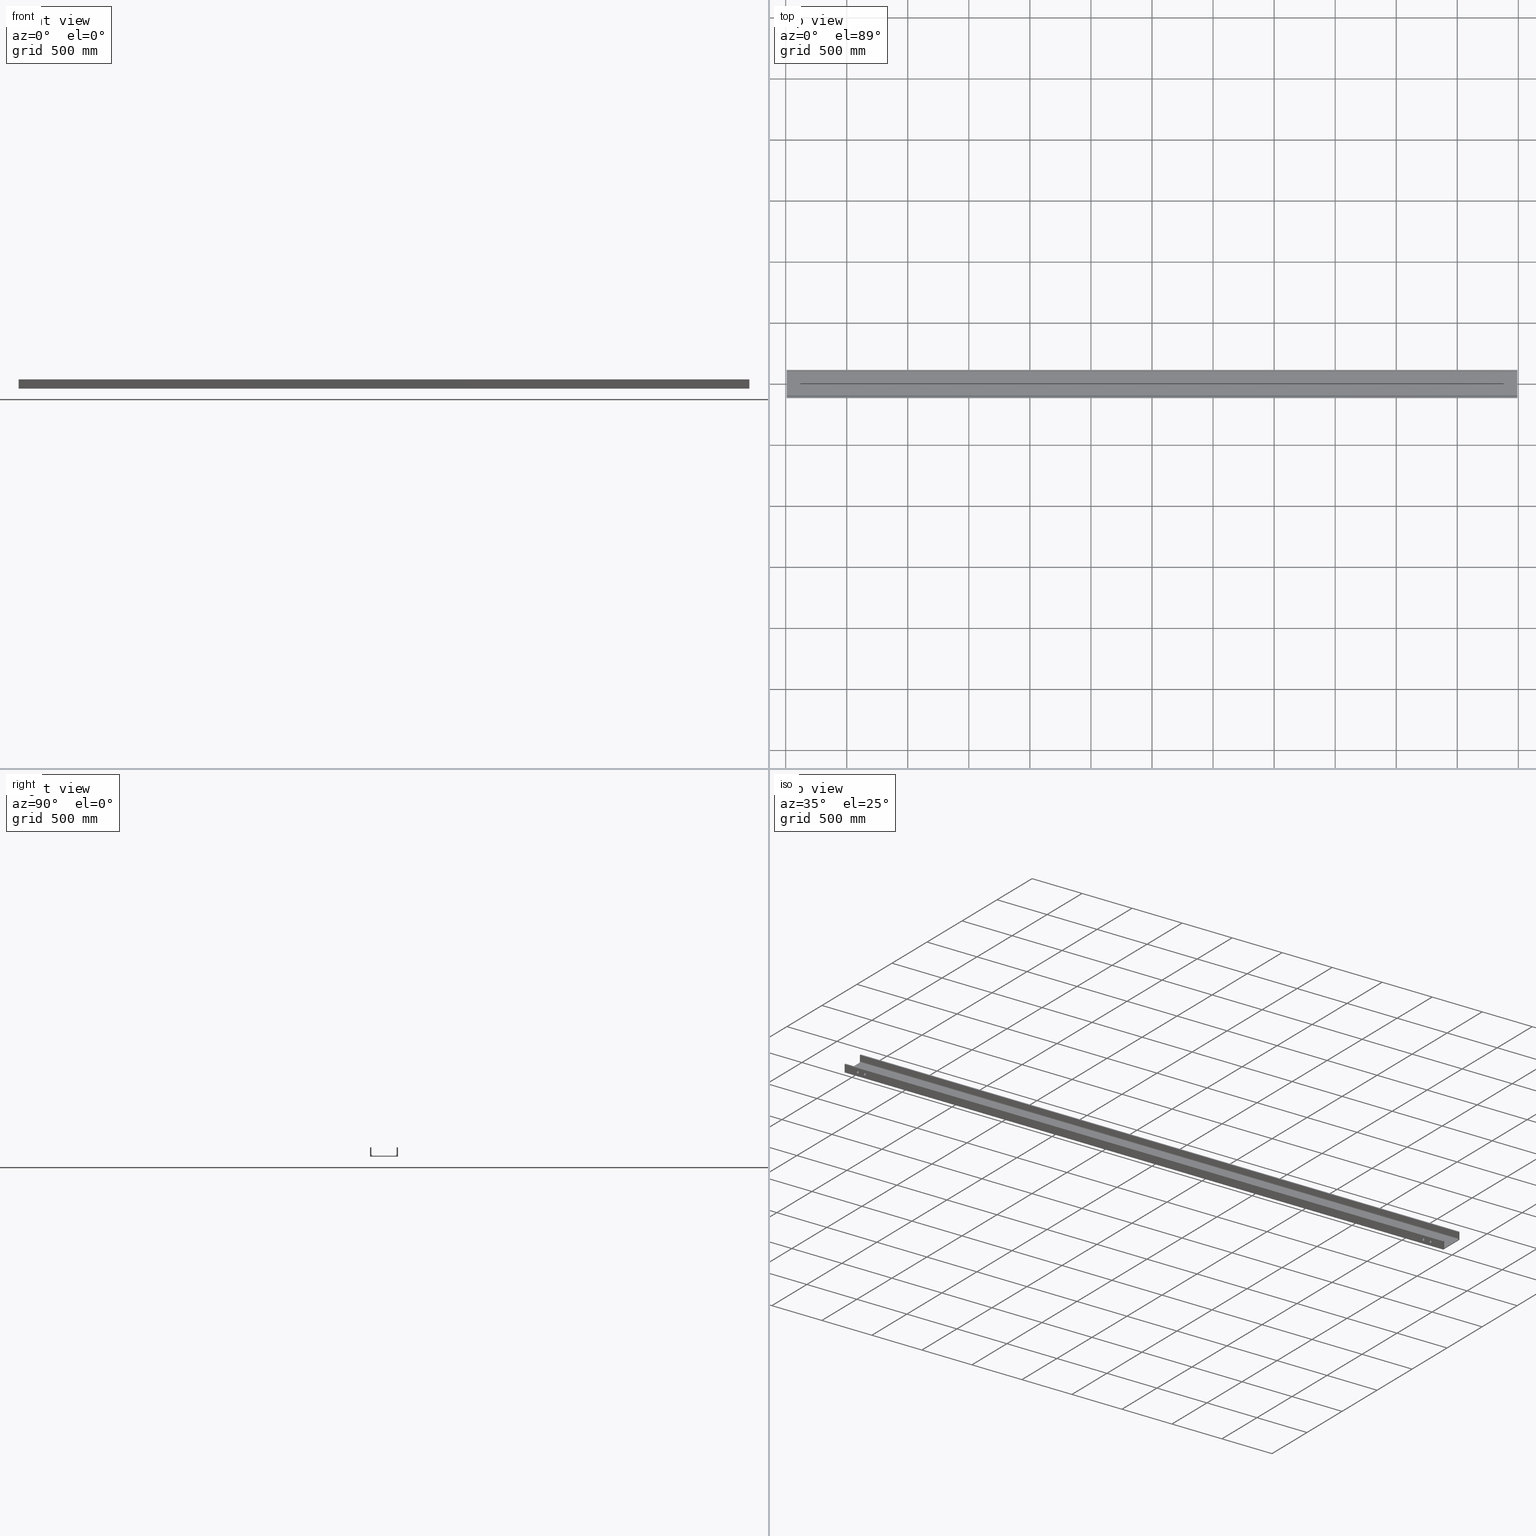
[diagram: canonical four-view strip — front | top / right | iso, engineering-drawing reading convention]
A machine part, canonical four-view strip (front | top / right | iso — engineering-drawing reading convention). The complete STEP part file that produces these views, byte-faithful:
ISO-10303-21;
HEADER;
FILE_DESCRIPTION (( 'STEP AP203' ),
    '1' );
FILE_NAME ('3982-43-10_REV_.step',
    '2026-01-19T05:54:27',
    ( '' ),
    ( '' ),
    'SwSTEP 2.0',
    'SolidWorks 2025',
    '' );
FILE_SCHEMA (( 'CONFIG_CONTROL_DESIGN' ));
ENDSEC;

DATA;
#1 = ORIENTED_EDGE ( 'NONE', *, *, #409, .T. ) ;
#2 = LINE ( 'NONE', #35, #212 ) ;
#3 = PERSON ( 'UNSPECIFIED', 'UNSPECIFIED', 'UNSPECIFIED', ('UNSPECIFIED'), ('UNSPECIFIED'), ('UNSPECIFIED') ) ;
#4 = EDGE_CURVE ( 'NONE', #157, #161, #98, .T. ) ;
#5 = CIRCLE ( 'NONE', #424, 12.00000000000001066 ) ;
#6 = APPROVAL_PERSON_ORGANIZATION ( #332, #75, #290 ) ;
#7 = PERSON_AND_ORGANIZATION ( #3, #639 ) ;
#8 = DIRECTION ( 'NONE',  ( 0.000000000000000000, -3.469446951953611033E-15, -1.000000000000000000 ) ) ;
#9 = CYLINDRICAL_SURFACE ( 'NONE', #188, 12.00000000000001066 ) ;
#10 = DIRECTION ( 'NONE',  ( -0.000000000000000000, -1.000000000000000000, -0.000000000000000000 ) ) ;
#11 = CARTESIAN_POINT ( 'NONE',  ( -2992.500000000000000, 90.99999999999927525, -7.200000000000271960 ) ) ;
#12 = EDGE_CURVE ( 'NONE', #429, #385, #595, .T. ) ;
#13 = CARTESIAN_POINT ( 'NONE',  ( 0.000000000000000000, 0.000000000000000000, 0.000000000000000000 ) ) ;
#14 = ORIENTED_EDGE ( 'NONE', *, *, #46, .F. ) ;
#15 = CARTESIAN_POINT ( 'NONE',  ( 2992.500000000000000, 91.00000000000110845, -7.200000000000271960 ) ) ;
#16 = ADVANCED_FACE ( 'NONE', ( #36 ), #727, .T. ) ;
#17 = PERSON_AND_ORGANIZATION ( #3, #639 ) ;
#18 = ORIENTED_EDGE ( 'NONE', *, *, #310, .T. ) ;
#19 = AXIS2_PLACEMENT_3D ( 'NONE', #498, #265, #510 ) ;
#20 = VECTOR ( 'NONE', #276, 1000.000000000000000 ) ;
#21 = PERSON_AND_ORGANIZATION ( #3, #639 ) ;
#22 = ORIENTED_EDGE ( 'NONE', *, *, #506, .T. ) ;
#23 = FACE_OUTER_BOUND ( 'NONE', #632, .T. ) ;
#24 = ORIENTED_EDGE ( 'NONE', *, *, #149, .F. ) ;
#25 = DIRECTION ( 'NONE',  ( 0.000000000000000000, -1.000000000000000000, 3.550464257150331619E-15 ) ) ;
#26 = ADVANCED_FACE ( 'NONE', ( #721 ), #503, .F. ) ;
#27 = ORIENTED_EDGE ( 'NONE', *, *, #154, .T. ) ;
#28 = LINE ( 'NONE', #731, #513 ) ;
#29 = AXIS2_PLACEMENT_3D ( 'NONE', #208, #664, #607 ) ;
#30 = EDGE_LOOP ( 'NONE', ( #261, #174, #308, #574 ) ) ;
#31 = CARTESIAN_POINT ( 'NONE',  ( 2862.500000000000455, -114.9999999999997300, 35.80000000000040217 ) ) ;
#32 = DIRECTION ( 'NONE',  ( 0.000000000000000000, -1.000000000000000000, 5.204170427930446527E-15 ) ) ;
#33 = DIRECTION ( 'NONE',  ( 1.000000000000000000, 3.061616997868382648E-16, -0.000000000000000000 ) ) ;
#34 = EDGE_LOOP ( 'NONE', ( #132, #27 ) ) ;
#35 = CARTESIAN_POINT ( 'NONE',  ( -2992.500000000000000, 90.99999999999927525, -7.200000000000271960 ) ) ;
#36 = FACE_OUTER_BOUND ( 'NONE', #647, .T. ) ;
#37 = FACE_OUTER_BOUND ( 'NONE', #280, .T. ) ;
#38 = ORIENTED_EDGE ( 'NONE', *, *, #465, .F. ) ;
#39 = CARTESIAN_POINT ( 'NONE',  ( -2992.500000000000000, -103.0000000000005826, 61.30000000000038085 ) ) ;
#40 = LINE ( 'NONE', #613, #555 ) ;
#41 = AXIS2_PLACEMENT_3D ( 'NONE', #597, #733, #494 ) ;
#42 = ORIENTED_EDGE ( 'NONE', *, *, #472, .T. ) ;
#43 = CIRCLE ( 'NONE', #387, 11.99999999999995559 ) ;
#44 = DIRECTION ( 'NONE',  ( 0.000000000000000000, -3.469446951953611033E-15, -1.000000000000000000 ) ) ;
#45 = LINE ( 'NONE', #368, #20 ) ;
#46 = EDGE_CURVE ( 'NONE', #404, #668, #710, .T. ) ;
#47 = CARTESIAN_POINT ( 'NONE',  ( -2862.500000000000455, -103.0000000000006253, 35.80000000000040217 ) ) ;
#48 = LINE ( 'NONE', #314, #178 ) ;
#49 = ADVANCED_FACE ( 'NONE', ( #443 ), #338, .T. ) ;
#50 = CARTESIAN_POINT ( 'NONE',  ( -2862.500000000000455, -114.9999999999997300, 23.80000000000038796 ) ) ;
#51 = EDGE_LOOP ( 'NONE', ( #137, #398, #539, #546 ) ) ;
#52 = AXIS2_PLACEMENT_3D ( 'NONE', #450, #282, #176 ) ;
#53 = DIRECTION ( 'NONE',  ( -0.000000000000000000, -1.000000000000000000, -0.000000000000000000 ) ) ;
#54 = CARTESIAN_POINT ( 'NONE',  ( -2992.500000000000000, 102.9999999999995168, 61.29999999999964899 ) ) ;
#55 = ORIENTED_EDGE ( 'NONE', *, *, #650, .T. ) ;
#56 = VECTOR ( 'NONE', #636, 1000.000000000000000 ) ;
#57 = LOCAL_TIME ( 16, 54, 27.00000000000000000, #249 ) ;
#58 = DIRECTION ( 'NONE',  ( 0.000000000000000000, 2.960594732333750906E-15, 1.000000000000000000 ) ) ;
#59 = APPROVAL_DATE_TIME ( #111, #75 ) ;
#60 = CARTESIAN_POINT ( 'NONE',  ( -2862.500000000000455, -114.9999999999997300, 35.80000000000040217 ) ) ;
#61 = ORIENTED_EDGE ( 'NONE', *, *, #693, .T. ) ;
#62 = DIRECTION ( 'NONE',  ( 0.000000000000000000, -1.000000000000000000, 3.550464257150332014E-15 ) ) ;
#63 = EDGE_CURVE ( 'NONE', #683, #297, #159, .T. ) ;
#64 = VERTEX_POINT ( 'NONE', #289 ) ;
#65 = CARTESIAN_POINT ( 'NONE',  ( 2862.500000000000455, -114.9999999999997300, 23.80000000000038796 ) ) ;
#66 = CYLINDRICAL_SURFACE ( 'NONE', #566, 12.00000000000001066 ) ;
#67 = CC_DESIGN_PERSON_AND_ORGANIZATION_ASSIGNMENT ( #17, #646, ( #605 ) ) ;
#68 = ORIENTED_EDGE ( 'NONE', *, *, #526, .F. ) ;
#69 = DIRECTION ( 'NONE',  ( -0.000000000000000000, -1.000000000000000000, -0.000000000000000000 ) ) ;
#70 = CARTESIAN_POINT ( 'NONE',  ( 2862.500000000000455, -114.9999999999997300, 11.80000000000037552 ) ) ;
#71 = COORDINATED_UNIVERSAL_TIME_OFFSET ( 10, 0, .AHEAD. ) ;
#72 = EDGE_CURVE ( 'NONE', #446, #323, #224, .T. ) ;
#73 = VECTOR ( 'NONE', #345, 1000.000000000000000 ) ;
#74 = ORIENTED_EDGE ( 'NONE', *, *, #629, .F. ) ;
#75 = APPROVAL ( #107, 'UNSPECIFIED' ) ;
#76 = ORIENTED_EDGE ( 'NONE', *, *, #358, .F. ) ;
#77 = ORIENTED_EDGE ( 'NONE', *, *, #476, .T. ) ;
#78 = DIRECTION ( 'NONE',  ( 0.000000000000000000, -3.469446951953611033E-15, -1.000000000000000000 ) ) ;
#79 = ORIENTED_EDGE ( 'NONE', *, *, #606, .T. ) ;
#80 = CARTESIAN_POINT ( 'NONE',  ( -2992.500000000000000, 90.99999999999927525, -7.200000000000271960 ) ) ;
#81 = PRODUCT ( '3982-43-10_REV_', '3982-43-10_REV_', '', ( #406 ) ) ;
#82 = ORIENTED_EDGE ( 'NONE', *, *, #705, .F. ) ;
#83 = CARTESIAN_POINT ( 'NONE',  ( -2992.500000000000000, -91.00000000000076739, 4.800000000000296474 ) ) ;
#84 = DIRECTION ( 'NONE',  ( 1.000000000000000000, 3.061616997868382648E-16, -0.000000000000000000 ) ) ;
#85 = ADVANCED_FACE ( 'NONE', ( #228 ), #571, .F. ) ;
#86 = ORIENTED_EDGE ( 'NONE', *, *, #409, .F. ) ;
#87 = DIRECTION ( 'NONE',  ( 1.000000000000000000, 3.061616997868382648E-16, -0.000000000000000000 ) ) ;
#88 = ORIENTED_EDGE ( 'NONE', *, *, #573, .T. ) ;
#89 = DIRECTION ( 'NONE',  ( 0.000000000000000000, 1.000000000000000000, -1.734723475976815575E-15 ) ) ;
#90 = APPROVAL ( #532, 'UNSPECIFIED' ) ;
#91 = EDGE_LOOP ( 'NONE', ( #637, #719, #583, #82, #674, #256, #155, #371, #18, #670 ) ) ;
#92 = CARTESIAN_POINT ( 'NONE',  ( 2992.500000000000000, 115.0000000000012932, 61.29999999999958504 ) ) ;
#93 = DIRECTION ( 'NONE',  ( -1.000000000000000000, -3.061616997868382648E-16, 0.000000000000000000 ) ) ;
#94 = DIRECTION ( 'NONE',  ( 0.000000000000000000, -3.469446951953611033E-15, -1.000000000000000000 ) ) ;
#95 = EDGE_CURVE ( 'NONE', #695, #318, #495, .T. ) ;
#96 = CARTESIAN_POINT ( 'NONE',  ( -2862.500000000000455, -103.0000000000006537, 23.80000000000038796 ) ) ;
#97 = DIRECTION ( 'NONE',  ( 3.061616997868382648E-16, -1.000000000000000000, 0.000000000000000000 ) ) ;
#98 = CIRCLE ( 'NONE', #662, 12.00000000000001066 ) ;
#99 = CARTESIAN_POINT ( 'NONE',  ( 2862.500000000000455, -102.9999999999988916, 23.80000000000038796 ) ) ;
#100 = AXIS2_PLACEMENT_3D ( 'NONE', #65, #69, #198 ) ;
#101 = CARTESIAN_POINT ( 'NONE',  ( -2992.500000000000000, -103.0000000000007532, 4.800000000000337330 ) ) ;
#102 = EDGE_CURVE ( 'NONE', #157, #104, #672, .T. ) ;
#103 = VECTOR ( 'NONE', #561, 1000.000000000000000 ) ;
#104 = VERTEX_POINT ( 'NONE', #60 ) ;
#105 = CARTESIAN_POINT ( 'NONE',  ( -2792.500000000000455, -103.0000000000006395, 23.80000000000037730 ) ) ;
#106 = DIRECTION ( 'NONE',  ( 3.061616997868382648E-16, -1.000000000000000000, 3.193119318612173803E-15 ) ) ;
#107 = APPROVAL_STATUS ( 'not_yet_approved' ) ;
#108 = ORIENTED_EDGE ( 'NONE', *, *, #253, .T. ) ;
#109 = DIRECTION ( 'NONE',  ( 0.000000000000000000, 1.000000000000000000, -1.734723475976815772E-15 ) ) ;
#110 = ADVANCED_BREP_SHAPE_REPRESENTATION ( '3982-43-10_REV_', ( #548, #568 ), #374 ) ;
#111 = DATE_AND_TIME ( #620, #415 ) ;
#112 = ORIENTED_EDGE ( 'NONE', *, *, #383, .T. ) ;
#113 = DIRECTION ( 'NONE',  ( -1.087016172001559413E-30, 3.550464257150332014E-15, 1.000000000000000000 ) ) ;
#114 = ORIENTED_EDGE ( 'NONE', *, *, #185, .T. ) ;
#115 = LINE ( 'NONE', #180, #150 ) ;
#116 = VECTOR ( 'NONE', #563, 1000.000000000000000 ) ;
#117 = CC_DESIGN_APPROVAL ( #204, ( #667 ) ) ;
#118 = DIRECTION ( 'NONE',  ( 0.000000000000000000, -3.469446951953611033E-15, -1.000000000000000000 ) ) ;
#119 = PERSON_AND_ORGANIZATION ( #3, #639 ) ;
#120 = DIRECTION ( 'NONE',  ( -0.000000000000000000, -1.000000000000000000, -0.000000000000000000 ) ) ;
#121 = CALENDAR_DATE ( 2026, 19, 1 ) ;
#122 = ORIENTED_EDGE ( 'NONE', *, *, #136, .T. ) ;
#123 = DIRECTION ( 'NONE',  ( -1.085303336481044130E-30, 3.544869711778692810E-15, 1.000000000000000000 ) ) ;
#124 = AXIS2_PLACEMENT_3D ( 'NONE', #341, #730, #58 ) ;
#125 = APPLICATION_CONTEXT ( 'configuration controlled 3d designs of mechanical parts and assemblies' ) ;
#126 = AXIS2_PLACEMENT_3D ( 'NONE', #582, #708, #641 ) ;
#127 = EDGE_LOOP ( 'NONE', ( #709, #264, #227, #250 ) ) ;
#128 = FACE_OUTER_BOUND ( 'NONE', #127, .T. ) ;
#129 = EDGE_CURVE ( 'NONE', #161, #562, #217, .T. ) ;
#130 = VECTOR ( 'NONE', #247, 1000.000000000000000 ) ;
#131 = CIRCLE ( 'NONE', #436, 12.00000000000001066 ) ;
#132 = ORIENTED_EDGE ( 'NONE', *, *, #95, .T. ) ;
#133 = ADVANCED_FACE ( 'NONE', ( #517 ), #9, .F. ) ;
#134 = ORIENTED_EDGE ( 'NONE', *, *, #463, .F. ) ;
#135 = LINE ( 'NONE', #15, #663 ) ;
#136 = EDGE_CURVE ( 'NONE', #297, #327, #480, .T. ) ;
#137 = ORIENTED_EDGE ( 'NONE', *, *, #182, .F. ) ;
#138 = FACE_BOUND ( 'NONE', #284, .T. ) ;
#139 = DIRECTION ( 'NONE',  ( 3.061616997868382648E-16, -1.000000000000000000, 3.193119318612173803E-15 ) ) ;
#140 = PLANE ( 'NONE',  #676 ) ;
#141 = ORIENTED_EDGE ( 'NONE', *, *, #389, .F. ) ;
#142 = CARTESIAN_POINT ( 'NONE',  ( -2792.500000000000455, -114.9999999999997300, 35.80000000000038796 ) ) ;
#143 = PLANE ( 'NONE',  #501 ) ;
#144 = ORIENTED_EDGE ( 'NONE', *, *, #334, .T. ) ;
#145 = CARTESIAN_POINT ( 'NONE',  ( -2862.500000000000455, -114.9999999999997300, 11.80000000000037552 ) ) ;
#146 = VECTOR ( 'NONE', #440, 1000.000000000000000 ) ;
#147 = EDGE_LOOP ( 'NONE', ( #414, #151, #419, #77 ) ) ;
#148 = CARTESIAN_POINT ( 'NONE',  ( -2992.500000000000000, -91.00000000000076739, 4.800000000000296474 ) ) ;
#149 = EDGE_CURVE ( 'NONE', #668, #404, #468, .T. ) ;
#150 = VECTOR ( 'NONE', #223, 1000.000000000000000 ) ;
#151 = ORIENTED_EDGE ( 'NONE', *, *, #288, .F. ) ;
#152 = CARTESIAN_POINT ( 'NONE',  ( -2992.500000000000000, 102.9999999999995168, 61.29999999999964899 ) ) ;
#153 = DIRECTION ( 'NONE',  ( 1.000000000000000000, 3.061616997868382648E-16, -0.000000000000000000 ) ) ;
#154 = EDGE_CURVE ( 'NONE', #318, #695, #577, .T. ) ;
#155 = ORIENTED_EDGE ( 'NONE', *, *, #445, .T. ) ;
#156 = DIRECTION ( 'NONE',  ( 0.000000000000000000, 0.000000000000000000, -1.000000000000000000 ) ) ;
#157 = VERTEX_POINT ( 'NONE', #47 ) ;
#158 = CARTESIAN_POINT ( 'NONE',  ( 2992.500000000000000, -114.9999999999986926, 61.30000000000040217 ) ) ;
#159 = LINE ( 'NONE', #286, #73 ) ;
#160 = DIRECTION ( 'NONE',  ( 1.000000000000000000, 3.061616997868382648E-16, -0.000000000000000000 ) ) ;
#161 = VERTEX_POINT ( 'NONE', #277 ) ;
#162 = DIRECTION ( 'NONE',  ( 0.000000000000000000, -3.469446951953611033E-15, -1.000000000000000000 ) ) ;
#163 = AXIS2_PLACEMENT_3D ( 'NONE', #623, #688, #614 ) ;
#164 = AXIS2_PLACEMENT_3D ( 'NONE', #384, #493, #540 ) ;
#165 = PERSON_AND_ORGANIZATION_ROLE ( 'creator' ) ;
#166 = EDGE_LOOP ( 'NONE', ( #369, #108 ) ) ;
#167 = LINE ( 'NONE', #391, #692 ) ;
#168 = DIRECTION ( 'NONE',  ( 0.000000000000000000, 0.000000000000000000, -1.000000000000000000 ) ) ;
#169 = CALENDAR_DATE ( 2026, 19, 1 ) ;
#170 = LINE ( 'NONE', #348, #116 ) ;
#171 = EDGE_CURVE ( 'NONE', #695, #244, #507, .T. ) ;
#172 = DIRECTION ( 'NONE',  ( 0.000000000000000000, 0.000000000000000000, -1.000000000000000000 ) ) ;
#173 = DATE_AND_TIME ( #634, #403 ) ;
#174 = ORIENTED_EDGE ( 'NONE', *, *, #463, .T. ) ;
#175 = AXIS2_PLACEMENT_3D ( 'NONE', #99, #106, #118 ) ;
#176 = DIRECTION ( 'NONE',  ( 0.000000000000000000, 1.000000000000000000, 0.000000000000000000 ) ) ;
#177 = PERSON_AND_ORGANIZATION ( #3, #639 ) ;
#178 = VECTOR ( 'NONE', #720, 1000.000000000000000 ) ;
#179 = ORIENTED_EDGE ( 'NONE', *, *, #310, .F. ) ;
#180 = CARTESIAN_POINT ( 'NONE',  ( 2992.500000000000000, 115.0000000000010800, -13.70000000000041318 ) ) ;
#181 = CIRCLE ( 'NONE', #460, 11.99999999999995559 ) ;
#182 = EDGE_CURVE ( 'NONE', #335, #668, #421, .T. ) ;
#183 = DIRECTION ( 'NONE',  ( 0.000000000000000000, 0.000000000000000000, -1.000000000000000000 ) ) ;
#184 = ADVANCED_FACE ( 'NONE', ( #654, #138, #196, #473, #535 ), #140, .F. ) ;
#185 = EDGE_CURVE ( 'NONE', #240, #609, #135, .T. ) ;
#186 = EDGE_LOOP ( 'NONE', ( #22, #635 ) ) ;
#187 = DIRECTION ( 'NONE',  ( -0.000000000000000000, -1.000000000000000000, -0.000000000000000000 ) ) ;
#188 = AXIS2_PLACEMENT_3D ( 'NONE', #382, #230, #560 ) ;
#189 = ORIENTED_EDGE ( 'NONE', *, *, #573, .F. ) ;
#190 = CIRCLE ( 'NONE', #602, 12.00000000000001066 ) ;
#191 = CC_DESIGN_APPROVAL ( #75, ( #471 ) ) ;
#192 = EDGE_LOOP ( 'NONE', ( #481, #564, #534, #581 ) ) ;
#193 = DIRECTION ( 'NONE',  ( 3.061616997868382648E-16, -1.000000000000000000, 3.193119318612173803E-15 ) ) ;
#194 = CARTESIAN_POINT ( 'NONE',  ( -2992.500000000000000, 114.9999999999992468, -13.70000000000041318 ) ) ;
#195 = ORIENTED_EDGE ( 'NONE', *, *, #586, .F. ) ;
#196 = FACE_BOUND ( 'NONE', #464, .T. ) ;
#197 = CARTESIAN_POINT ( 'NONE',  ( -2992.500000000000000, 114.9999999999992468, -13.70000000000041318 ) ) ;
#198 = DIRECTION ( 'NONE',  ( 0.000000000000000000, 0.000000000000000000, -1.000000000000000000 ) ) ;
#199 = CIRCLE ( 'NONE', #373, 12.00000000000001066 ) ;
#200 = EDGE_CURVE ( 'NONE', #429, #603, #649, .T. ) ;
#201 = CARTESIAN_POINT ( 'NONE',  ( -2862.500000000000455, -103.0000000000006537, 23.80000000000038796 ) ) ;
#202 = CYLINDRICAL_SURFACE ( 'NONE', #485, 11.99999999999995559 ) ;
#203 = EDGE_LOOP ( 'NONE', ( #390, #690, #321, #543 ) ) ;
#204 = APPROVAL ( #508, 'UNSPECIFIED' ) ;
#205 = ORIENTED_EDGE ( 'NONE', *, *, #346, .F. ) ;
#206 = DIRECTION ( 'NONE',  ( 1.000000000000000000, 3.061616997868382648E-16, -0.000000000000000000 ) ) ;
#207 = LINE ( 'NONE', #431, #56 ) ;
#208 = CARTESIAN_POINT ( 'NONE',  ( 2792.500000000000455, -114.9999999999997300, 23.80000000000037730 ) ) ;
#209 = CARTESIAN_POINT ( 'NONE',  ( 2862.500000000000455, -114.9999999999997300, 23.80000000000038796 ) ) ;
#210 = DIRECTION ( 'NONE',  ( 3.061616997868382648E-16, -1.000000000000000000, 0.000000000000000000 ) ) ;
#211 = ADVANCED_FACE ( 'NONE', ( #23 ), #361, .T. ) ;
#212 = VECTOR ( 'NONE', #153, 1000.000000000000000 ) ;
#213 = EDGE_LOOP ( 'NONE', ( #299, #640, #484, #407 ) ) ;
#214 = LINE ( 'NONE', #438, #638 ) ;
#215 = PLANE ( 'NONE',  #234 ) ;
#216 = EDGE_CURVE ( 'NONE', #446, #426, #594, .T. ) ;
#217 = LINE ( 'NONE', #396, #146 ) ;
#218 = CARTESIAN_POINT ( 'NONE',  ( 2792.500000000000455, -102.9999999999989626, 11.80000000000036664 ) ) ;
#219 = ORIENTED_EDGE ( 'NONE', *, *, #288, .T. ) ;
#220 = DIRECTION ( 'NONE',  ( 0.000000000000000000, -1.000000000000000000, 0.000000000000000000 ) ) ;
#221 = CARTESIAN_POINT ( 'NONE',  ( 2862.500000000000455, -114.9999999999997300, 11.80000000000037552 ) ) ;
#222 = ORIENTED_EDGE ( 'NONE', *, *, #129, .F. ) ;
#223 = DIRECTION ( 'NONE',  ( 0.000000000000000000, -1.000000000000000000, 3.544869711778692810E-15 ) ) ;
#224 = CIRCLE ( 'NONE', #52, 11.99999999999995559 ) ;
#225 = CARTESIAN_POINT ( 'NONE',  ( -2862.500000000000455, -114.9999999999997300, 35.80000000000040217 ) ) ;
#226 = CARTESIAN_POINT ( 'NONE',  ( -2992.500000000000000, 114.9999999999994600, 61.29999999999958504 ) ) ;
#227 = ORIENTED_EDGE ( 'NONE', *, *, #622, .T. ) ;
#228 = FACE_OUTER_BOUND ( 'NONE', #717, .T. ) ;
#229 = CARTESIAN_POINT ( 'NONE',  ( 2792.500000000000455, -102.9999999999989200, 23.80000000000037730 ) ) ;
#230 = DIRECTION ( 'NONE',  ( -0.000000000000000000, -1.000000000000000000, -0.000000000000000000 ) ) ;
#231 = VERTEX_POINT ( 'NONE', #417 ) ;
#232 = CARTESIAN_POINT ( 'NONE',  ( -2992.500000000000000, -115.0000000000005116, 61.30000000000040217 ) ) ;
#233 = ADVANCED_FACE ( 'NONE', ( #309 ), #66, .F. ) ;
#234 = AXIS2_PLACEMENT_3D ( 'NONE', #333, #386, #428 ) ;
#235 = AXIS2_PLACEMENT_3D ( 'NONE', #229, #458, #8 ) ;
#236 = DIRECTION ( 'NONE',  ( 1.000000000000000000, 3.061616997868382648E-16, 0.000000000000000000 ) ) ;
#237 = EDGE_CURVE ( 'NONE', #318, #238, #252, .T. ) ;
#238 = VERTEX_POINT ( 'NONE', #528 ) ;
#239 = CARTESIAN_POINT ( 'NONE',  ( -2862.500000000000455, -114.9999999999997300, 23.80000000000038796 ) ) ;
#240 = VERTEX_POINT ( 'NONE', #355 ) ;
#241 = VECTOR ( 'NONE', #711, 1000.000000000000000 ) ;
#242 = DATE_AND_TIME ( #527, #272 ) ;
#243 = CC_DESIGN_PERSON_AND_ORGANIZATION_ASSIGNMENT ( #119, #572, ( #471 ) ) ;
#244 = VERTEX_POINT ( 'NONE', #70 ) ;
#245 = FACE_OUTER_BOUND ( 'NONE', #192, .T. ) ;
#246 = CIRCLE ( 'NONE', #19, 12.00000000000001066 ) ;
#247 = DIRECTION ( 'NONE',  ( -0.000000000000000000, -1.000000000000000000, -0.000000000000000000 ) ) ;
#248 = CIRCLE ( 'NONE', #235, 12.00000000000001066 ) ;
#249 = COORDINATED_UNIVERSAL_TIME_OFFSET ( 10, 0, .AHEAD. ) ;
#250 = ORIENTED_EDGE ( 'NONE', *, *, #171, .F. ) ;
#251 = VERTEX_POINT ( 'NONE', #585 ) ;
#252 = LINE ( 'NONE', #31, #130 ) ;
#253 = EDGE_CURVE ( 'NONE', #452, #683, #246, .T. ) ;
#254 = EDGE_LOOP ( 'NONE', ( #79, #545 ) ) ;
#255 = DIRECTION ( 'NONE',  ( -0.000000000000000000, -1.000000000000000000, -0.000000000000000000 ) ) ;
#256 = ORIENTED_EDGE ( 'NONE', *, *, #200, .F. ) ;
#257 = CIRCLE ( 'NONE', #271, 12.00000000000001066 ) ;
#258 = CC_DESIGN_PERSON_AND_ORGANIZATION_ASSIGNMENT ( #678, #165, ( #667 ) ) ;
#259 = CARTESIAN_POINT ( 'NONE',  ( 2992.500000000000000, 115.0000000000012932, 61.29999999999958504 ) ) ;
#260 = CARTESIAN_POINT ( 'NONE',  ( -2792.500000000000455, -103.0000000000006679, 11.80000000000036664 ) ) ;
#261 = ORIENTED_EDGE ( 'NONE', *, *, #253, .F. ) ;
#262 = EDGE_CURVE ( 'NONE', #244, #238, #270, .T. ) ;
#263 = CYLINDRICAL_SURFACE ( 'NONE', #533, 12.00000000000001066 ) ;
#264 = ORIENTED_EDGE ( 'NONE', *, *, #237, .T. ) ;
#265 = DIRECTION ( 'NONE',  ( 3.061616997868382648E-16, -1.000000000000000000, 3.193119318612173803E-15 ) ) ;
#266 = ORIENTED_EDGE ( 'NONE', *, *, #334, .F. ) ;
#267 = VECTOR ( 'NONE', #456, 1000.000000000000000 ) ;
#268 = ADVANCED_FACE ( 'NONE', ( #319 ), #724, .F. ) ;
#269 = CARTESIAN_POINT ( 'NONE',  ( 2992.500000000000000, -90.99999999999893419, 4.800000000000296474 ) ) ;
#270 = CIRCLE ( 'NONE', #41, 12.00000000000001066 ) ;
#271 = AXIS2_PLACEMENT_3D ( 'NONE', #105, #505, #162 ) ;
#272 = LOCAL_TIME ( 16, 54, 27.00000000000000000, #71 ) ;
#273 = DIRECTION ( 'NONE',  ( 1.000000000000000000, 3.061616997868382648E-16, -0.000000000000000000 ) ) ;
#274 = LINE ( 'NONE', #715, #567 ) ;
#275 = ORIENTED_EDGE ( 'NONE', *, *, #12, .T. ) ;
#276 = DIRECTION ( 'NONE',  ( 1.000000000000000000, 3.061616997868382648E-16, -0.000000000000000000 ) ) ;
#277 = CARTESIAN_POINT ( 'NONE',  ( -2862.500000000000455, -103.0000000000006963, 11.80000000000037552 ) ) ;
#278 =( NAMED_UNIT ( * ) PLANE_ANGLE_UNIT ( ) SI_UNIT ( $, .RADIAN. ) );
#279 = LINE ( 'NONE', #518, #103 ) ;
#280 = EDGE_LOOP ( 'NONE', ( #205, #303, #366, #380 ) ) ;
#281 = ADVANCED_FACE ( 'NONE', ( #434, #554, #729, #666, #610 ), #215, .F. ) ;
#282 = DIRECTION ( 'NONE',  ( 1.000000000000000000, 3.061616997868382648E-16, 0.000000000000000000 ) ) ;
#283 = CIRCLE ( 'NONE', #702, 12.00000000000001066 ) ;
#284 = EDGE_LOOP ( 'NONE', ( #14, #24 ) ) ;
#285 = CARTESIAN_POINT ( 'NONE',  ( 2792.500000000000455, -114.9999999999997300, 35.80000000000038796 ) ) ;
#286 = CARTESIAN_POINT ( 'NONE',  ( 2792.500000000000455, -114.9999999999997300, 11.80000000000036664 ) ) ;
#287 = DIRECTION ( 'NONE',  ( 0.000000000000000000, 0.000000000000000000, 1.000000000000000000 ) ) ;
#288 = EDGE_CURVE ( 'NONE', #446, #240, #2, .T. ) ;
#289 = CARTESIAN_POINT ( 'NONE',  ( 2992.500000000000000, 103.0000000000011084, 4.799999999999649880 ) ) ;
#290 = APPROVAL_ROLE ( '' ) ;
#291 = FACE_OUTER_BOUND ( 'NONE', #147, .T. ) ;
#292 = PRODUCT_RELATED_PRODUCT_CATEGORY ( 'detail', '', ( #81 ) ) ;
#293 = APPROVAL_DATE_TIME ( #242, #90 ) ;
#294 = VECTOR ( 'NONE', #296, 1000.000000000000000 ) ;
#295 = ORIENTED_EDGE ( 'NONE', *, *, #629, .T. ) ;
#296 = DIRECTION ( 'NONE',  ( 0.000000000000000000, 2.960594732333750906E-15, 1.000000000000000000 ) ) ;
#297 = VERTEX_POINT ( 'NONE', #439 ) ;
#298 = DIRECTION ( 'NONE',  ( 0.000000000000000000, 0.000000000000000000, -1.000000000000000000 ) ) ;
#299 = ORIENTED_EDGE ( 'NONE', *, *, #102, .F. ) ;
#300 = CARTESIAN_POINT ( 'NONE',  ( -2792.500000000000455, -103.0000000000006395, 23.80000000000037730 ) ) ;
#301 = VECTOR ( 'NONE', #273, 1000.000000000000000 ) ;
#302 = VECTOR ( 'NONE', #645, 1000.000000000000000 ) ;
#303 = ORIENTED_EDGE ( 'NONE', *, *, #182, .T. ) ;
#304 = CYLINDRICAL_SURFACE ( 'NONE', #100, 12.00000000000001066 ) ;
#305 = DIRECTION ( 'NONE',  ( 0.000000000000000000, 2.960594732333750906E-15, 1.000000000000000000 ) ) ;
#306 = LOCAL_TIME ( 16, 54, 27.00000000000000000, #624 ) ;
#307 = ORIENTED_EDGE ( 'NONE', *, *, #445, .F. ) ;
#308 = ORIENTED_EDGE ( 'NONE', *, *, #358, .T. ) ;
#309 = FACE_OUTER_BOUND ( 'NONE', #51, .T. ) ;
#310 = EDGE_CURVE ( 'NONE', #251, #707, #40, .T. ) ;
#311 = ADVANCED_FACE ( 'NONE', ( #604 ), #143, .T. ) ;
#312 = VERTEX_POINT ( 'NONE', #671 ) ;
#313 = CARTESIAN_POINT ( 'NONE',  ( -2992.500000000000000, 90.99999999999931788, 4.799999999999649880 ) ) ;
#314 = CARTESIAN_POINT ( 'NONE',  ( -2792.500000000000455, -114.9999999999997300, 11.80000000000036664 ) ) ;
#315 = APPROVAL_PERSON_ORGANIZATION ( #7, #204, #735 ) ;
#316 = VERTEX_POINT ( 'NONE', #158 ) ;
#317 = CARTESIAN_POINT ( 'NONE',  ( 2862.500000000000455, -102.9999999999989342, 11.80000000000037552 ) ) ;
#318 = VERTEX_POINT ( 'NONE', #541 ) ;
#319 = FACE_OUTER_BOUND ( 'NONE', #353, .T. ) ;
#320 = ADVANCED_FACE ( 'NONE', ( #442 ), #675, .F. ) ;
#321 = ORIENTED_EDGE ( 'NONE', *, *, #499, .F. ) ;
#322 = DIRECTION ( 'NONE',  ( 0.000000000000000000, -1.000000000000000000, 5.204170427930446527E-15 ) ) ;
#323 = VERTEX_POINT ( 'NONE', #490 ) ;
#324 = CARTESIAN_POINT ( 'NONE',  ( -2992.500000000000000, -91.00000000000076739, 4.800000000000296474 ) ) ;
#325 = ORIENTED_EDGE ( 'NONE', *, *, #552, .F. ) ;
#326 = CARTESIAN_POINT ( 'NONE',  ( -2992.500000000000000, -103.0000000000007532, 4.800000000000337330 ) ) ;
#327 = VERTEX_POINT ( 'NONE', #549 ) ;
#328 = DIRECTION ( 'NONE',  ( -1.000000000000000000, -3.061616997868382648E-16, 0.000000000000000000 ) ) ;
#329 = VECTOR ( 'NONE', #120, 1000.000000000000000 ) ;
#330 = CC_DESIGN_APPROVAL ( #90, ( #605 ) ) ;
#331 = CARTESIAN_POINT ( 'NONE',  ( -2792.500000000000455, -114.9999999999997300, 23.80000000000037730 ) ) ;
#332 = PERSON_AND_ORGANIZATION ( #3, #639 ) ;
#333 = CARTESIAN_POINT ( 'NONE',  ( -2992.500000000000000, -103.0000000000005826, 61.30000000000038085 ) ) ;
#334 = EDGE_CURVE ( 'NONE', #609, #231, #181, .T. ) ;
#335 = VERTEX_POINT ( 'NONE', #381 ) ;
#336 = PLANE ( 'NONE',  #579 ) ;
#337 = EDGE_CURVE ( 'NONE', #603, #558, #45, .T. ) ;
#338 = PLANE ( 'NONE',  #124 ) ;
#339 = DIRECTION ( 'NONE',  ( 0.000000000000000000, -1.000000000000000000, 5.204170427930446527E-15 ) ) ;
#340 = CARTESIAN_POINT ( 'NONE',  ( 2992.500000000000000, 103.0000000000013500, 61.29999999999964899 ) ) ;
#341 = CARTESIAN_POINT ( 'NONE',  ( -2992.500000000000000, 114.9999999999992468, -13.70000000000041318 ) ) ;
#342 = AXIS2_PLACEMENT_3D ( 'NONE', #148, #84, #657 ) ;
#343 = APPROVAL_PERSON_ORGANIZATION ( #21, #90, #587 ) ;
#344 = PLANE ( 'NONE',  #680 ) ;
#345 = DIRECTION ( 'NONE',  ( -0.000000000000000000, -1.000000000000000000, -0.000000000000000000 ) ) ;
#346 = EDGE_CURVE ( 'NONE', #335, #351, #257, .T. ) ;
#347 =( LENGTH_UNIT ( ) NAMED_UNIT ( * ) SI_UNIT ( .MILLI., .METRE. ) );
#348 = CARTESIAN_POINT ( 'NONE',  ( -2992.500000000000000, 102.9999999999992752, 4.799999999999649880 ) ) ;
#349 = CARTESIAN_POINT ( 'NONE',  ( 2992.500000000000000, 115.0000000000010800, -13.70000000000041318 ) ) ;
#350 = AXIS2_PLACEMENT_3D ( 'NONE', #239, #187, #411 ) ;
#351 = VERTEX_POINT ( 'NONE', #260 ) ;
#352 = DIRECTION ( 'NONE',  ( -3.061616997868382648E-16, 1.000000000000000000, -3.700743415417188731E-15 ) ) ;
#353 = EDGE_LOOP ( 'NONE', ( #144, #714, #732, #356, #660, #1, #88, #700, #621, #114 ) ) ;
#354 = CARTESIAN_POINT ( 'NONE',  ( 2992.500000000000000, -102.9999999999987494, 61.30000000000038085 ) ) ;
#355 = CARTESIAN_POINT ( 'NONE',  ( 2992.500000000000000, 91.00000000000110845, -7.200000000000271960 ) ) ;
#356 = ORIENTED_EDGE ( 'NONE', *, *, #598, .F. ) ;
#357 = DIRECTION ( 'NONE',  ( 0.000000000000000000, 3.700743415417188731E-15, 1.000000000000000000 ) ) ;
#358 = EDGE_CURVE ( 'NONE', #327, #297, #199, .T. ) ;
#359 = EDGE_LOOP ( 'NONE', ( #325, #538 ) ) ;
#360 = LINE ( 'NONE', #478, #435 ) ;
#361 = PLANE ( 'NONE',  #126 ) ;
#362 = EDGE_CURVE ( 'NONE', #351, #404, #48, .T. ) ;
#363 = EDGE_LOOP ( 'NONE', ( #86, #703, #375, #470 ) ) ;
#364 = CARTESIAN_POINT ( 'NONE',  ( -2992.500000000000000, -115.0000000000007958, -13.69999999999959783 ) ) ;
#365 = CARTESIAN_POINT ( 'NONE',  ( -2992.500000000000000, -115.0000000000007958, -13.69999999999959783 ) ) ;
#366 = ORIENTED_EDGE ( 'NONE', *, *, #149, .T. ) ;
#367 = DIRECTION ( 'NONE',  ( 0.000000000000000000, 0.000000000000000000, -1.000000000000000000 ) ) ;
#368 = CARTESIAN_POINT ( 'NONE',  ( -2992.500000000000000, 114.9999999999994600, 61.29999999999958504 ) ) ;
#369 = ORIENTED_EDGE ( 'NONE', *, *, #389, .T. ) ;
#370 = DIRECTION ( 'NONE',  ( 3.061616997868382648E-16, -1.000000000000000000, 3.193119318612173803E-15 ) ) ;
#371 = ORIENTED_EDGE ( 'NONE', *, *, #499, .T. ) ;
#372 = DIRECTION ( 'NONE',  ( -0.000000000000000000, -1.000000000000000000, -0.000000000000000000 ) ) ;
#373 = AXIS2_PLACEMENT_3D ( 'NONE', #616, #372, #559 ) ;
#374 =( GEOMETRIC_REPRESENTATION_CONTEXT ( 3 ) GLOBAL_UNCERTAINTY_ASSIGNED_CONTEXT ( ( #697 ) ) GLOBAL_UNIT_ASSIGNED_CONTEXT ( ( #347, #278, #689 ) ) REPRESENTATION_CONTEXT ( 'NONE', 'WORKASPACE' ) );
#375 = ORIENTED_EDGE ( 'NONE', *, *, #200, .T. ) ;
#376 = CARTESIAN_POINT ( 'NONE',  ( -2992.500000000000000, -115.0000000000007958, -13.69999999999959783 ) ) ;
#377 = CARTESIAN_POINT ( 'NONE',  ( 2992.500000000000000, -90.99999999999893419, 4.800000000000296474 ) ) ;
#378 = EDGE_LOOP ( 'NONE', ( #266, #496, #410, #295 ) ) ;
#379 = LINE ( 'NONE', #101, #469 ) ;
#380 = ORIENTED_EDGE ( 'NONE', *, *, #362, .F. ) ;
#381 = CARTESIAN_POINT ( 'NONE',  ( -2792.500000000000455, -103.0000000000005969, 35.80000000000038796 ) ) ;
#382 = CARTESIAN_POINT ( 'NONE',  ( -2862.500000000000455, -114.9999999999997300, 23.80000000000038796 ) ) ;
#383 = EDGE_CURVE ( 'NONE', #316, #475, #207, .T. ) ;
#384 = CARTESIAN_POINT ( 'NONE',  ( -2862.500000000000455, -114.9999999999997300, 23.80000000000038796 ) ) ;
#385 = VERTEX_POINT ( 'NONE', #349 ) ;
#386 = DIRECTION ( 'NONE',  ( 3.061616997868382648E-16, -1.000000000000000000, 3.193119318612173803E-15 ) ) ;
#387 = AXIS2_PLACEMENT_3D ( 'NONE', #575, #236, #462 ) ;
#388 = DIRECTION ( 'NONE',  ( 1.000000000000000000, 0.000000000000000000, 0.000000000000000000 ) ) ;
#389 = EDGE_CURVE ( 'NONE', #683, #452, #248, .T. ) ;
#390 = ORIENTED_EDGE ( 'NONE', *, *, #598, .T. ) ;
#391 = CARTESIAN_POINT ( 'NONE',  ( -2992.500000000000000, 114.9999999999992468, -13.70000000000041318 ) ) ;
#392 = DIRECTION ( 'NONE',  ( 0.000000000000000000, 0.000000000000000000, -1.000000000000000000 ) ) ;
#393 = COORDINATED_UNIVERSAL_TIME_OFFSET ( 10, 0, .AHEAD. ) ;
#394 = ORIENTED_EDGE ( 'NONE', *, *, #4, .F. ) ;
#395 = ADVANCED_FACE ( 'NONE', ( #686 ), #399, .F. ) ;
#396 = CARTESIAN_POINT ( 'NONE',  ( -2862.500000000000455, -114.9999999999997300, 11.80000000000037552 ) ) ;
#397 = PERSON_AND_ORGANIZATION_ROLE ( 'design_owner' ) ;
#398 = ORIENTED_EDGE ( 'NONE', *, *, #506, .F. ) ;
#399 = PLANE ( 'NONE',  #713 ) ;
#400 = ADVANCED_FACE ( 'NONE', ( #291 ), #336, .T. ) ;
#401 = VECTOR ( 'NONE', #420, 1000.000000000000000 ) ;
#402 = PERSON_AND_ORGANIZATION ( #3, #639 ) ;
#403 = LOCAL_TIME ( 16, 54, 27.00000000000000000, #444 ) ;
#404 = VERTEX_POINT ( 'NONE', #516 ) ;
#405 = LINE ( 'NONE', #525, #294 ) ;
#406 = MECHANICAL_CONTEXT ( 'NONE', #125, 'mechanical' ) ;
#407 = ORIENTED_EDGE ( 'NONE', *, *, #552, .T. ) ;
#408 = CARTESIAN_POINT ( 'NONE',  ( -2992.500000000000000, 114.9999999999992468, -13.70000000000041318 ) ) ;
#409 = EDGE_CURVE ( 'NONE', #385, #558, #405, .T. ) ;
#410 = ORIENTED_EDGE ( 'NONE', *, *, #677, .T. ) ;
#411 = DIRECTION ( 'NONE',  ( 0.000000000000000000, 0.000000000000000000, -1.000000000000000000 ) ) ;
#412 = DESIGN_CONTEXT ( 'detailed design', #500, 'design' ) ;
#413 = AXIS2_PLACEMENT_3D ( 'NONE', #441, #504, #537 ) ;
#414 = ORIENTED_EDGE ( 'NONE', *, *, #185, .F. ) ;
#415 = LOCAL_TIME ( 16, 54, 27.00000000000000000, #393 ) ;
#416 = ORIENTED_EDGE ( 'NONE', *, *, #699, .T. ) ;
#417 = CARTESIAN_POINT ( 'NONE',  ( 2992.500000000000000, -102.9999999999989200, 4.800000000000337330 ) ) ;
#418 = EDGE_CURVE ( 'NONE', #312, #64, #520, .T. ) ;
#419 = ORIENTED_EDGE ( 'NONE', *, *, #216, .T. ) ;
#420 = DIRECTION ( 'NONE',  ( 0.000000000000000000, 3.700743415417188731E-15, 1.000000000000000000 ) ) ;
#421 = LINE ( 'NONE', #706, #302 ) ;
#422 = EDGE_CURVE ( 'NONE', #385, #600, #115, .T. ) ;
#423 = CARTESIAN_POINT ( 'NONE',  ( -2992.500000000000000, 114.9999999999994600, 61.29999999999958504 ) ) ;
#424 = AXIS2_PLACEMENT_3D ( 'NONE', #300, #193, #78 ) ;
#425 = PRODUCT_DEFINITION_SHAPE ( 'NONE', 'NONE',  #667 ) ;
#426 = VERTEX_POINT ( 'NONE', #633 ) ;
#427 = DIRECTION ( 'NONE',  ( -1.000000000000000000, -3.061616997868382648E-16, 0.000000000000000000 ) ) ;
#428 = DIRECTION ( 'NONE',  ( 0.000000000000000000, -3.193119318612173803E-15, -1.000000000000000000 ) ) ;
#429 = VERTEX_POINT ( 'NONE', #679 ) ;
#430 = DIRECTION ( 'NONE',  ( 0.000000000000000000, -3.193119318612173803E-15, -1.000000000000000000 ) ) ;
#431 = CARTESIAN_POINT ( 'NONE',  ( 2992.500000000000000, -114.9999999999986926, 61.30000000000040217 ) ) ;
#432 = ORIENTED_EDGE ( 'NONE', *, *, #693, .F. ) ;
#433 = DIRECTION ( 'NONE',  ( -0.000000000000000000, -1.000000000000000000, -0.000000000000000000 ) ) ;
#434 = FACE_BOUND ( 'NONE', #254, .T. ) ;
#435 = VECTOR ( 'NONE', #584, 1000.000000000000000 ) ;
#436 = AXIS2_PLACEMENT_3D ( 'NONE', #50, #10, #183 ) ;
#437 = DIRECTION ( 'NONE',  ( -1.593317664195582844E-30, 5.204170427930446527E-15, 1.000000000000000000 ) ) ;
#438 = CARTESIAN_POINT ( 'NONE',  ( 2992.500000000000000, -114.9999999999989626, -13.69999999999959783 ) ) ;
#439 = CARTESIAN_POINT ( 'NONE',  ( 2792.500000000000455, -114.9999999999997300, 11.80000000000036664 ) ) ;
#440 = DIRECTION ( 'NONE',  ( -0.000000000000000000, -1.000000000000000000, -0.000000000000000000 ) ) ;
#441 = CARTESIAN_POINT ( 'NONE',  ( -2792.500000000000455, -114.9999999999997300, 23.80000000000037730 ) ) ;
#442 = FACE_OUTER_BOUND ( 'NONE', #378, .T. ) ;
#443 = FACE_OUTER_BOUND ( 'NONE', #363, .T. ) ;
#444 = COORDINATED_UNIVERSAL_TIME_OFFSET ( 10, 0, .AHEAD. ) ;
#445 = EDGE_CURVE ( 'NONE', #429, #588, #167, .T. ) ;
#446 = VERTEX_POINT ( 'NONE', #11 ) ;
#447 = DIRECTION ( 'NONE',  ( 0.000000000000000000, -3.684368444552508235E-15, -1.000000000000000000 ) ) ;
#448 = VECTOR ( 'NONE', #722, 1000.000000000000000 ) ;
#449 = VECTOR ( 'NONE', #87, 1000.000000000000000 ) ;
#450 = CARTESIAN_POINT ( 'NONE',  ( -2992.500000000000000, 90.99999999999931788, 4.799999999999649880 ) ) ;
#451 = APPLICATION_PROTOCOL_DEFINITION ( 'international standard', 'config_control_design', 1994, #500 ) ;
#452 = VERTEX_POINT ( 'NONE', #454 ) ;
#453 = DIRECTION ( 'NONE',  ( -0.000000000000000000, -1.000000000000000000, -0.000000000000000000 ) ) ;
#454 = CARTESIAN_POINT ( 'NONE',  ( 2792.500000000000455, -102.9999999999988773, 35.80000000000038796 ) ) ;
#455 = ADVANCED_FACE ( 'NONE', ( #523 ), #344, .F. ) ;
#456 = DIRECTION ( 'NONE',  ( -0.000000000000000000, -1.000000000000000000, -0.000000000000000000 ) ) ;
#457 = DATE_TIME_ROLE ( 'creation_date' ) ;
#458 = DIRECTION ( 'NONE',  ( 3.061616997868382648E-16, -1.000000000000000000, 3.193119318612173803E-15 ) ) ;
#459 = AXIS2_PLACEMENT_3D ( 'NONE', #377, #93, #210 ) ;
#460 = AXIS2_PLACEMENT_3D ( 'NONE', #269, #328, #220 ) ;
#461 = APPLICATION_PROTOCOL_DEFINITION ( 'international standard', 'config_control_design', 1994, #125 ) ;
#462 = DIRECTION ( 'NONE',  ( 0.000000000000000000, 1.000000000000000000, 0.000000000000000000 ) ) ;
#463 = EDGE_CURVE ( 'NONE', #452, #327, #691, .T. ) ;
#464 = EDGE_LOOP ( 'NONE', ( #576, #76 ) ) ;
#465 = EDGE_CURVE ( 'NONE', #323, #64, #170, .T. ) ;
#466 = SHAPE_DEFINITION_REPRESENTATION ( #425, #110 ) ;
#467 = ORIENTED_EDGE ( 'NONE', *, *, #723, .T. ) ;
#468 = CIRCLE ( 'NONE', #531, 12.00000000000001066 ) ;
#469 = VECTOR ( 'NONE', #551, 1000.000000000000000 ) ;
#470 = ORIENTED_EDGE ( 'NONE', *, *, #337, .T. ) ;
#471 = PRODUCT_DEFINITION_FORMATION_WITH_SPECIFIED_SOURCE ( 'ANY', '', #81, .NOT_KNOWN. ) ;
#472 = EDGE_CURVE ( 'NONE', #240, #64, #43, .T. ) ;
#473 = FACE_OUTER_BOUND ( 'NONE', #203, .T. ) ;
#474 = DATE_TIME_ROLE ( 'classification_date' ) ;
#475 = VERTEX_POINT ( 'NONE', #354 ) ;
#476 = EDGE_CURVE ( 'NONE', #426, #609, #360, .T. ) ;
#477 = ORIENTED_EDGE ( 'NONE', *, *, #526, .T. ) ;
#478 = CARTESIAN_POINT ( 'NONE',  ( -2992.500000000000000, -91.00000000000079581, -7.199999999999626255 ) ) ;
#479 = AXIS2_PLACEMENT_3D ( 'NONE', #423, #437, #32 ) ;
#480 = CIRCLE ( 'NONE', #163, 12.00000000000001066 ) ;
#481 = ORIENTED_EDGE ( 'NONE', *, *, #237, .F. ) ;
#482 = FACE_OUTER_BOUND ( 'NONE', #519, .T. ) ;
#483 = VECTOR ( 'NONE', #160, 1000.000000000000000 ) ;
#484 = ORIENTED_EDGE ( 'NONE', *, *, #129, .T. ) ;
#485 = AXIS2_PLACEMENT_3D ( 'NONE', #313, #206, #544 ) ;
#486 = ADVANCED_FACE ( 'NONE', ( #245 ), #304, .F. ) ;
#487 = ORIENTED_EDGE ( 'NONE', *, *, #705, .T. ) ;
#488 = DIRECTION ( 'NONE',  ( 0.000000000000000000, -1.000000000000000000, 0.000000000000000000 ) ) ;
#489 = ORIENTED_EDGE ( 'NONE', *, *, #465, .T. ) ;
#490 = CARTESIAN_POINT ( 'NONE',  ( -2992.500000000000000, 102.9999999999992752, 4.799999999999649880 ) ) ;
#491 = CC_DESIGN_PERSON_AND_ORGANIZATION_ASSIGNMENT ( #177, #631, ( #471 ) ) ;
#492 = EDGE_LOOP ( 'NONE', ( #112, #432, #179, #658 ) ) ;
#493 = DIRECTION ( 'NONE',  ( -0.000000000000000000, -1.000000000000000000, -0.000000000000000000 ) ) ;
#494 = DIRECTION ( 'NONE',  ( 0.000000000000000000, 0.000000000000000000, -1.000000000000000000 ) ) ;
#495 = CIRCLE ( 'NONE', #175, 12.00000000000001066 ) ;
#496 = ORIENTED_EDGE ( 'NONE', *, *, #476, .F. ) ;
#497 = CYLINDRICAL_SURFACE ( 'NONE', #413, 12.00000000000001066 ) ;
#498 = CARTESIAN_POINT ( 'NONE',  ( 2792.500000000000455, -102.9999999999989200, 23.80000000000037730 ) ) ;
#499 = EDGE_CURVE ( 'NONE', #588, #251, #704, .T. ) ;
#500 = APPLICATION_CONTEXT ( 'configuration controlled 3d designs of mechanical parts and assemblies' ) ;
#501 = AXIS2_PLACEMENT_3D ( 'NONE', #324, #661, #97 ) ;
#502 = CIRCLE ( 'NONE', #580, 11.99999999999995559 ) ;
#503 = CYLINDRICAL_SURFACE ( 'NONE', #29, 12.00000000000001066 ) ;
#504 = DIRECTION ( 'NONE',  ( -0.000000000000000000, -1.000000000000000000, -0.000000000000000000 ) ) ;
#505 = DIRECTION ( 'NONE',  ( 3.061616997868382648E-16, -1.000000000000000000, 3.193119318612173803E-15 ) ) ;
#506 = EDGE_CURVE ( 'NONE', #351, #335, #5, .T. ) ;
#507 = LINE ( 'NONE', #221, #241 ) ;
#508 = APPROVAL_STATUS ( 'not_yet_approved' ) ;
#509 = ORIENTED_EDGE ( 'NONE', *, *, #422, .T. ) ;
#510 = DIRECTION ( 'NONE',  ( 0.000000000000000000, -3.469446951953611033E-15, -1.000000000000000000 ) ) ;
#511 = ORIENTED_EDGE ( 'NONE', *, *, #102, .T. ) ;
#512 = CIRCLE ( 'NONE', #164, 12.00000000000001066 ) ;
#513 = VECTOR ( 'NONE', #430, 1000.000000000000000 ) ;
#514 = ADVANCED_FACE ( 'NONE', ( #696 ), #644, .F. ) ;
#515 = ORIENTED_EDGE ( 'NONE', *, *, #72, .F. ) ;
#516 = CARTESIAN_POINT ( 'NONE',  ( -2792.500000000000455, -114.9999999999997300, 11.80000000000036664 ) ) ;
#517 = FACE_OUTER_BOUND ( 'NONE', #611, .T. ) ;
#518 = CARTESIAN_POINT ( 'NONE',  ( -2992.500000000000000, 102.9999999999995168, 61.29999999999964899 ) ) ;
#519 = EDGE_LOOP ( 'NONE', ( #42, #38, #515, #219 ) ) ;
#520 = LINE ( 'NONE', #340, #651 ) ;
#521 = SECURITY_CLASSIFICATION_LEVEL ( 'unclassified' ) ;
#522 = ORIENTED_EDGE ( 'NONE', *, *, #262, .F. ) ;
#523 = FACE_OUTER_BOUND ( 'NONE', #492, .T. ) ;
#524 = ADVANCED_FACE ( 'NONE', ( #128 ), #263, .F. ) ;
#525 = CARTESIAN_POINT ( 'NONE',  ( 2992.500000000000000, 115.0000000000010800, -13.70000000000041318 ) ) ;
#526 = EDGE_CURVE ( 'NONE', #716, #312, #728, .T. ) ;
#527 = CALENDAR_DATE ( 2026, 19, 1 ) ;
#528 = CARTESIAN_POINT ( 'NONE',  ( 2862.500000000000455, -114.9999999999997300, 35.80000000000040217 ) ) ;
#529 = EDGE_CURVE ( 'NONE', #251, #316, #612, .T. ) ;
#530 = CARTESIAN_POINT ( 'NONE',  ( -2792.500000000000455, -114.9999999999997300, 23.80000000000037730 ) ) ;
#531 = AXIS2_PLACEMENT_3D ( 'NONE', #331, #681, #392 ) ;
#532 = APPROVAL_STATUS ( 'not_yet_approved' ) ;
#533 = AXIS2_PLACEMENT_3D ( 'NONE', #665, #255, #367 ) ;
#534 = ORIENTED_EDGE ( 'NONE', *, *, #171, .T. ) ;
#535 = FACE_BOUND ( 'NONE', #592, .T. ) ;
#536 = ORIENTED_EDGE ( 'NONE', *, *, #63, .T. ) ;
#537 = DIRECTION ( 'NONE',  ( 0.000000000000000000, 0.000000000000000000, -1.000000000000000000 ) ) ;
#538 = ORIENTED_EDGE ( 'NONE', *, *, #723, .F. ) ;
#539 = ORIENTED_EDGE ( 'NONE', *, *, #362, .T. ) ;
#540 = DIRECTION ( 'NONE',  ( 0.000000000000000000, 0.000000000000000000, -1.000000000000000000 ) ) ;
#541 = CARTESIAN_POINT ( 'NONE',  ( 2862.500000000000455, -102.9999999999988631, 35.80000000000040217 ) ) ;
#542 = CC_DESIGN_PERSON_AND_ORGANIZATION_ASSIGNMENT ( #402, #397, ( #81 ) ) ;
#543 = ORIENTED_EDGE ( 'NONE', *, *, #642, .T. ) ;
#544 = DIRECTION ( 'NONE',  ( 0.000000000000000000, 1.000000000000000000, 0.000000000000000000 ) ) ;
#545 = ORIENTED_EDGE ( 'NONE', *, *, #4, .T. ) ;
#546 = ORIENTED_EDGE ( 'NONE', *, *, #46, .T. ) ;
#547 = LINE ( 'NONE', #39, #448 ) ;
#548 = MANIFOLD_SOLID_BREP ( 'Mirror1', #648 ) ;
#549 = CARTESIAN_POINT ( 'NONE',  ( 2792.500000000000455, -114.9999999999997300, 35.80000000000038796 ) ) ;
#550 = EDGE_LOOP ( 'NONE', ( #55, #74, #195, #61 ) ) ;
#551 = DIRECTION ( 'NONE',  ( 1.000000000000000000, 3.061616997868382648E-16, -0.000000000000000000 ) ) ;
#552 = EDGE_CURVE ( 'NONE', #562, #104, #512, .T. ) ;
#553 = ORIENTED_EDGE ( 'NONE', *, *, #418, .F. ) ;
#554 = FACE_BOUND ( 'NONE', #186, .T. ) ;
#555 = VECTOR ( 'NONE', #89, 1000.000000000000000 ) ;
#556 = CARTESIAN_POINT ( 'NONE',  ( 2792.500000000000455, -114.9999999999997300, 23.80000000000037730 ) ) ;
#557 = CARTESIAN_POINT ( 'NONE',  ( -2992.500000000000000, -103.0000000000005826, 61.30000000000038085 ) ) ;
#558 = VERTEX_POINT ( 'NONE', #259 ) ;
#559 = DIRECTION ( 'NONE',  ( 0.000000000000000000, 0.000000000000000000, -1.000000000000000000 ) ) ;
#560 = DIRECTION ( 'NONE',  ( 0.000000000000000000, 0.000000000000000000, -1.000000000000000000 ) ) ;
#561 = DIRECTION ( 'NONE',  ( 0.000000000000000000, -3.684368444552508235E-15, -1.000000000000000000 ) ) ;
#562 = VERTEX_POINT ( 'NONE', #145 ) ;
#563 = DIRECTION ( 'NONE',  ( 1.000000000000000000, 3.061616997868382648E-16, -0.000000000000000000 ) ) ;
#564 = ORIENTED_EDGE ( 'NONE', *, *, #95, .F. ) ;
#565 = DIRECTION ( 'NONE',  ( 0.000000000000000000, -1.000000000000000000, 3.544869711778692810E-15 ) ) ;
#566 = AXIS2_PLACEMENT_3D ( 'NONE', #530, #701, #298 ) ;
#567 = VECTOR ( 'NONE', #33, 1000.000000000000000 ) ;
#568 = AXIS2_PLACEMENT_3D ( 'NONE', #13, #287, #388 ) ;
#569 = DATE_AND_TIME ( #169, #306 ) ;
#570 = DIRECTION ( 'NONE',  ( 0.000000000000000000, -1.000000000000000000, 3.544869711778692810E-15 ) ) ;
#571 = CYLINDRICAL_SURFACE ( 'NONE', #589, 12.00000000000001066 ) ;
#572 = PERSON_AND_ORGANIZATION_ROLE ( 'design_supplier' ) ;
#573 = EDGE_CURVE ( 'NONE', #558, #312, #656, .T. ) ;
#574 = ORIENTED_EDGE ( 'NONE', *, *, #63, .F. ) ;
#575 = CARTESIAN_POINT ( 'NONE',  ( 2992.500000000000000, 91.00000000000115108, 4.799999999999649880 ) ) ;
#576 = ORIENTED_EDGE ( 'NONE', *, *, #136, .F. ) ;
#577 = CIRCLE ( 'NONE', #599, 12.00000000000001066 ) ;
#578 = CC_DESIGN_DATE_AND_TIME_ASSIGNMENT ( #698, #474, ( #605 ) ) ;
#579 = AXIS2_PLACEMENT_3D ( 'NONE', #627, #113, #62 ) ;
#580 = AXIS2_PLACEMENT_3D ( 'NONE', #83, #427, #488 ) ;
#581 = ORIENTED_EDGE ( 'NONE', *, *, #262, .T. ) ;
#582 = CARTESIAN_POINT ( 'NONE',  ( -2992.500000000000000, 102.9999999999995168, 61.29999999999964899 ) ) ;
#583 = ORIENTED_EDGE ( 'NONE', *, *, #72, .T. ) ;
#584 = DIRECTION ( 'NONE',  ( 1.000000000000000000, 3.061616997868382648E-16, -0.000000000000000000 ) ) ;
#585 = CARTESIAN_POINT ( 'NONE',  ( -2992.500000000000000, -115.0000000000005116, 61.30000000000040217 ) ) ;
#586 = EDGE_CURVE ( 'NONE', #707, #590, #547, .T. ) ;
#587 = APPROVAL_ROLE ( '' ) ;
#588 = VERTEX_POINT ( 'NONE', #376 ) ;
#589 = AXIS2_PLACEMENT_3D ( 'NONE', #556, #453, #172 ) ;
#590 = VERTEX_POINT ( 'NONE', #326 ) ;
#591 = DIRECTION ( 'NONE',  ( 0.000000000000000000, -1.000000000000000000, 3.550464257150331619E-15 ) ) ;
#592 = EDGE_LOOP ( 'NONE', ( #522, #653 ) ) ;
#593 = ADVANCED_FACE ( 'NONE', ( #37 ), #497, .F. ) ;
#594 = LINE ( 'NONE', #80, #625 ) ;
#595 = LINE ( 'NONE', #197, #301 ) ;
#596 = CARTESIAN_POINT ( 'NONE',  ( -2992.500000000000000, 114.9999999999994600, 61.29999999999958504 ) ) ;
#597 = CARTESIAN_POINT ( 'NONE',  ( 2862.500000000000455, -114.9999999999997300, 23.80000000000038796 ) ) ;
#598 = EDGE_CURVE ( 'NONE', #600, #316, #214, .T. ) ;
#599 = AXIS2_PLACEMENT_3D ( 'NONE', #619, #734, #630 ) ;
#600 = VERTEX_POINT ( 'NONE', #669 ) ;
#601 = LINE ( 'NONE', #659, #449 ) ;
#602 = AXIS2_PLACEMENT_3D ( 'NONE', #96, #370, #44 ) ;
#603 = VERTEX_POINT ( 'NONE', #596 ) ;
#604 = FACE_OUTER_BOUND ( 'NONE', #91, .T. ) ;
#605 = SECURITY_CLASSIFICATION ( '', '', #521 ) ;
#606 = EDGE_CURVE ( 'NONE', #161, #157, #190, .T. ) ;
#607 = DIRECTION ( 'NONE',  ( 0.000000000000000000, 0.000000000000000000, -1.000000000000000000 ) ) ;
#608 = CARTESIAN_POINT ( 'NONE',  ( -2992.500000000000000, -115.0000000000005116, 61.30000000000040217 ) ) ;
#609 = VERTEX_POINT ( 'NONE', #615 ) ;
#610 = FACE_OUTER_BOUND ( 'NONE', #550, .T. ) ;
#611 = EDGE_LOOP ( 'NONE', ( #394, #511, #467, #222 ) ) ;
#612 = LINE ( 'NONE', #608, #483 ) ;
#613 = CARTESIAN_POINT ( 'NONE',  ( -2992.500000000000000, -115.0000000000005116, 61.30000000000040217 ) ) ;
#614 = DIRECTION ( 'NONE',  ( 0.000000000000000000, 0.000000000000000000, -1.000000000000000000 ) ) ;
#615 = CARTESIAN_POINT ( 'NONE',  ( 2992.500000000000000, -90.99999999999897682, -7.199999999999626255 ) ) ;
#616 = CARTESIAN_POINT ( 'NONE',  ( 2792.500000000000455, -114.9999999999997300, 23.80000000000037730 ) ) ;
#617 = VECTOR ( 'NONE', #718, 1000.000000000000000 ) ;
#618 = DIRECTION ( 'NONE',  ( 5.311058880651943982E-31, -1.734723475976815772E-15, -1.000000000000000000 ) ) ;
#619 = CARTESIAN_POINT ( 'NONE',  ( 2862.500000000000455, -102.9999999999988916, 23.80000000000038796 ) ) ;
#620 = CALENDAR_DATE ( 2026, 19, 1 ) ;
#621 = ORIENTED_EDGE ( 'NONE', *, *, #472, .F. ) ;
#622 = EDGE_CURVE ( 'NONE', #238, #244, #283, .T. ) ;
#623 = CARTESIAN_POINT ( 'NONE',  ( 2792.500000000000455, -114.9999999999997300, 23.80000000000037730 ) ) ;
#624 = COORDINATED_UNIVERSAL_TIME_OFFSET ( 10, 0, .AHEAD. ) ;
#625 = VECTOR ( 'NONE', #25, 1000.000000000000000 ) ;
#626 = ORIENTED_EDGE ( 'NONE', *, *, #337, .F. ) ;
#627 = CARTESIAN_POINT ( 'NONE',  ( -2992.500000000000000, 90.99999999999927525, -7.200000000000271960 ) ) ;
#628 = VECTOR ( 'NONE', #322, 1000.000000000000000 ) ;
#629 = EDGE_CURVE ( 'NONE', #590, #231, #379, .T. ) ;
#630 = DIRECTION ( 'NONE',  ( 0.000000000000000000, -3.469446951953611033E-15, -1.000000000000000000 ) ) ;
#631 = PERSON_AND_ORGANIZATION_ROLE ( 'creator' ) ;
#632 = EDGE_LOOP ( 'NONE', ( #553, #68, #487, #489 ) ) ;
#633 = CARTESIAN_POINT ( 'NONE',  ( -2992.500000000000000, -91.00000000000079581, -7.199999999999626255 ) ) ;
#634 = CALENDAR_DATE ( 2026, 19, 1 ) ;
#635 = ORIENTED_EDGE ( 'NONE', *, *, #346, .T. ) ;
#636 = DIRECTION ( 'NONE',  ( 0.000000000000000000, 1.000000000000000000, -1.734723475976815575E-15 ) ) ;
#637 = ORIENTED_EDGE ( 'NONE', *, *, #677, .F. ) ;
#638 = VECTOR ( 'NONE', #673, 1000.000000000000000 ) ;
#639 = ORGANIZATION ( 'UNSPECIFIED', 'UNSPECIFIED', '' ) ;
#640 = ORIENTED_EDGE ( 'NONE', *, *, #606, .F. ) ;
#641 = DIRECTION ( 'NONE',  ( 0.000000000000000000, -3.684368444552508235E-15, -1.000000000000000000 ) ) ;
#642 = EDGE_CURVE ( 'NONE', #588, #600, #274, .T. ) ;
#643 = EDGE_LOOP ( 'NONE', ( #509, #655, #307, #275 ) ) ;
#644 = CYLINDRICAL_SURFACE ( 'NONE', #350, 12.00000000000001066 ) ;
#645 = DIRECTION ( 'NONE',  ( -0.000000000000000000, -1.000000000000000000, -0.000000000000000000 ) ) ;
#646 = PERSON_AND_ORGANIZATION_ROLE ( 'classification_officer' ) ;
#647 = EDGE_LOOP ( 'NONE', ( #189, #626, #416, #477 ) ) ;
#648 = CLOSED_SHELL ( 'NONE', ( #133, #593, #524, #26, #184, #320, #400, #687, #211, #16, #49, #395, #455, #281, #311, #268, #85, #486, #233, #514 ) ) ;
#649 = LINE ( 'NONE', #194, #726 ) ;
#650 = EDGE_CURVE ( 'NONE', #475, #231, #28, .T. ) ;
#651 = VECTOR ( 'NONE', #447, 1000.000000000000000 ) ;
#652 = VECTOR ( 'NONE', #339, 1000.000000000000000 ) ;
#653 = ORIENTED_EDGE ( 'NONE', *, *, #622, .F. ) ;
#654 = FACE_BOUND ( 'NONE', #359, .T. ) ;
#655 = ORIENTED_EDGE ( 'NONE', *, *, #642, .F. ) ;
#656 = LINE ( 'NONE', #92, #628 ) ;
#657 = DIRECTION ( 'NONE',  ( 0.000000000000000000, 1.000000000000000000, 0.000000000000000000 ) ) ;
#658 = ORIENTED_EDGE ( 'NONE', *, *, #529, .T. ) ;
#659 = CARTESIAN_POINT ( 'NONE',  ( -2992.500000000000000, -103.0000000000005826, 61.30000000000038085 ) ) ;
#660 = ORIENTED_EDGE ( 'NONE', *, *, #422, .F. ) ;
#661 = DIRECTION ( 'NONE',  ( -1.000000000000000000, -3.061616997868382648E-16, 0.000000000000000000 ) ) ;
#662 = AXIS2_PLACEMENT_3D ( 'NONE', #201, #139, #94 ) ;
#663 = VECTOR ( 'NONE', #591, 1000.000000000000000 ) ;
#664 = DIRECTION ( 'NONE',  ( -0.000000000000000000, -1.000000000000000000, -0.000000000000000000 ) ) ;
#665 = CARTESIAN_POINT ( 'NONE',  ( 2862.500000000000455, -114.9999999999997300, 23.80000000000038796 ) ) ;
#666 = FACE_BOUND ( 'NONE', #166, .T. ) ;
#667 = PRODUCT_DEFINITION ( 'UNKNOWN', '', #471, #412 ) ;
#668 = VERTEX_POINT ( 'NONE', #142 ) ;
#669 = CARTESIAN_POINT ( 'NONE',  ( 2992.500000000000000, -114.9999999999989626, -13.69999999999959783 ) ) ;
#670 = ORIENTED_EDGE ( 'NONE', *, *, #586, .T. ) ;
#671 = CARTESIAN_POINT ( 'NONE',  ( 2992.500000000000000, 103.0000000000013500, 61.29999999999964899 ) ) ;
#672 = LINE ( 'NONE', #225, #267 ) ;
#673 = DIRECTION ( 'NONE',  ( 0.000000000000000000, 3.700743415417188731E-15, 1.000000000000000000 ) ) ;
#674 = ORIENTED_EDGE ( 'NONE', *, *, #699, .F. ) ;
#675 = CYLINDRICAL_SURFACE ( 'NONE', #342, 11.99999999999995559 ) ;
#676 = AXIS2_PLACEMENT_3D ( 'NONE', #365, #352, #357 ) ;
#677 = EDGE_CURVE ( 'NONE', #426, #590, #502, .T. ) ;
#678 = PERSON_AND_ORGANIZATION ( #3, #639 ) ;
#679 = CARTESIAN_POINT ( 'NONE',  ( -2992.500000000000000, 114.9999999999992468, -13.70000000000041318 ) ) ;
#680 = AXIS2_PLACEMENT_3D ( 'NONE', #232, #618, #109 ) ;
#681 = DIRECTION ( 'NONE',  ( -0.000000000000000000, -1.000000000000000000, -0.000000000000000000 ) ) ;
#682 = APPROVAL_DATE_TIME ( #173, #204 ) ;
#683 = VERTEX_POINT ( 'NONE', #218 ) ;
#684 = CARTESIAN_POINT ( 'NONE',  ( -2792.500000000000455, -114.9999999999997300, 23.80000000000037730 ) ) ;
#685 = LINE ( 'NONE', #226, #652 ) ;
#686 = FACE_OUTER_BOUND ( 'NONE', #643, .T. ) ;
#687 = ADVANCED_FACE ( 'NONE', ( #482 ), #202, .F. ) ;
#688 = DIRECTION ( 'NONE',  ( -0.000000000000000000, -1.000000000000000000, -0.000000000000000000 ) ) ;
#689 =( NAMED_UNIT ( * ) SI_UNIT ( $, .STERADIAN. ) SOLID_ANGLE_UNIT ( ) );
#690 = ORIENTED_EDGE ( 'NONE', *, *, #529, .F. ) ;
#691 = LINE ( 'NONE', #285, #329 ) ;
#692 = VECTOR ( 'NONE', #570, 1000.000000000000000 ) ;
#693 = EDGE_CURVE ( 'NONE', #707, #475, #601, .T. ) ;
#694 = CC_DESIGN_SECURITY_CLASSIFICATION ( #605, ( #471 ) ) ;
#695 = VERTEX_POINT ( 'NONE', #317 ) ;
#696 = FACE_OUTER_BOUND ( 'NONE', #213, .T. ) ;
#697 = UNCERTAINTY_MEASURE_WITH_UNIT (LENGTH_MEASURE( 1.000000000000000082E-05 ), #347, 'distance_accuracy_value', 'NONE');
#698 = DATE_AND_TIME ( #121, #57 ) ;
#699 = EDGE_CURVE ( 'NONE', #603, #716, #685, .T. ) ;
#700 = ORIENTED_EDGE ( 'NONE', *, *, #418, .T. ) ;
#701 = DIRECTION ( 'NONE',  ( -0.000000000000000000, -1.000000000000000000, -0.000000000000000000 ) ) ;
#702 = AXIS2_PLACEMENT_3D ( 'NONE', #209, #433, #156 ) ;
#703 = ORIENTED_EDGE ( 'NONE', *, *, #12, .F. ) ;
#704 = LINE ( 'NONE', #364, #401 ) ;
#705 = EDGE_CURVE ( 'NONE', #716, #323, #279, .T. ) ;
#706 = CARTESIAN_POINT ( 'NONE',  ( -2792.500000000000455, -114.9999999999997300, 35.80000000000038796 ) ) ;
#707 = VERTEX_POINT ( 'NONE', #557 ) ;
#708 = DIRECTION ( 'NONE',  ( 3.061616997868382648E-16, -1.000000000000000000, 3.684368444552508235E-15 ) ) ;
#709 = ORIENTED_EDGE ( 'NONE', *, *, #154, .F. ) ;
#710 = CIRCLE ( 'NONE', #725, 12.00000000000001066 ) ;
#711 = DIRECTION ( 'NONE',  ( -0.000000000000000000, -1.000000000000000000, -0.000000000000000000 ) ) ;
#712 = CC_DESIGN_DATE_AND_TIME_ASSIGNMENT ( #569, #457, ( #667 ) ) ;
#713 = AXIS2_PLACEMENT_3D ( 'NONE', #408, #123, #565 ) ;
#714 = ORIENTED_EDGE ( 'NONE', *, *, #650, .F. ) ;
#715 = CARTESIAN_POINT ( 'NONE',  ( -2992.500000000000000, -115.0000000000007958, -13.69999999999959783 ) ) ;
#716 = VERTEX_POINT ( 'NONE', #54 ) ;
#717 = EDGE_LOOP ( 'NONE', ( #134, #141, #536, #122 ) ) ;
#718 = DIRECTION ( 'NONE',  ( 1.000000000000000000, 3.061616997868382648E-16, -0.000000000000000000 ) ) ;
#719 = ORIENTED_EDGE ( 'NONE', *, *, #216, .F. ) ;
#720 = DIRECTION ( 'NONE',  ( -0.000000000000000000, -1.000000000000000000, -0.000000000000000000 ) ) ;
#721 = FACE_OUTER_BOUND ( 'NONE', #30, .T. ) ;
#722 = DIRECTION ( 'NONE',  ( 0.000000000000000000, -3.193119318612173803E-15, -1.000000000000000000 ) ) ;
#723 = EDGE_CURVE ( 'NONE', #104, #562, #131, .T. ) ;
#724 = PLANE ( 'NONE',  #459 ) ;
#725 = AXIS2_PLACEMENT_3D ( 'NONE', #684, #53, #168 ) ;
#726 = VECTOR ( 'NONE', #305, 1000.000000000000000 ) ;
#727 = PLANE ( 'NONE',  #479 ) ;
#728 = LINE ( 'NONE', #152, #617 ) ;
#729 = FACE_BOUND ( 'NONE', #34, .T. ) ;
#730 = DIRECTION ( 'NONE',  ( -3.061616997868382648E-16, 1.000000000000000000, -2.960594732333750906E-15 ) ) ;
#731 = CARTESIAN_POINT ( 'NONE',  ( 2992.500000000000000, -102.9999999999987494, 61.30000000000038085 ) ) ;
#732 = ORIENTED_EDGE ( 'NONE', *, *, #383, .F. ) ;
#733 = DIRECTION ( 'NONE',  ( -0.000000000000000000, -1.000000000000000000, -0.000000000000000000 ) ) ;
#734 = DIRECTION ( 'NONE',  ( 3.061616997868382648E-16, -1.000000000000000000, 3.193119318612173803E-15 ) ) ;
#735 = APPROVAL_ROLE ( '' ) ;
ENDSEC;
END-ISO-10303-21;
